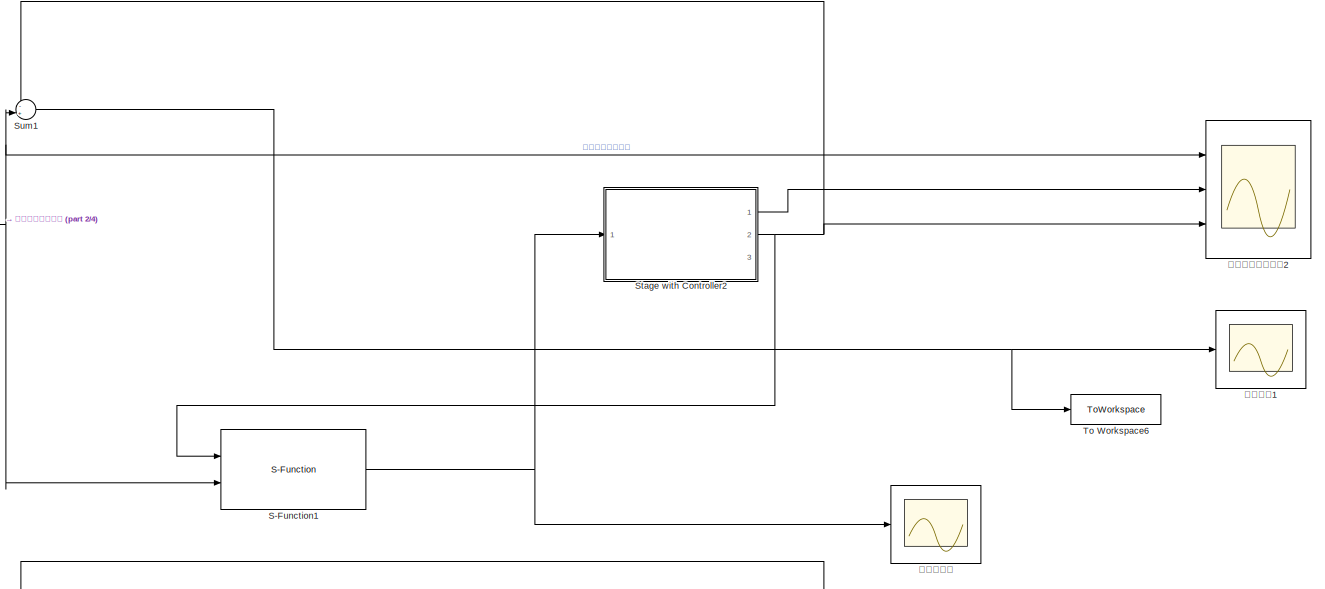
[diagram: root canvas - part 1/4, full width, top band]
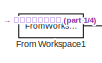
[diagram: root canvas - part 2/4, top left region]
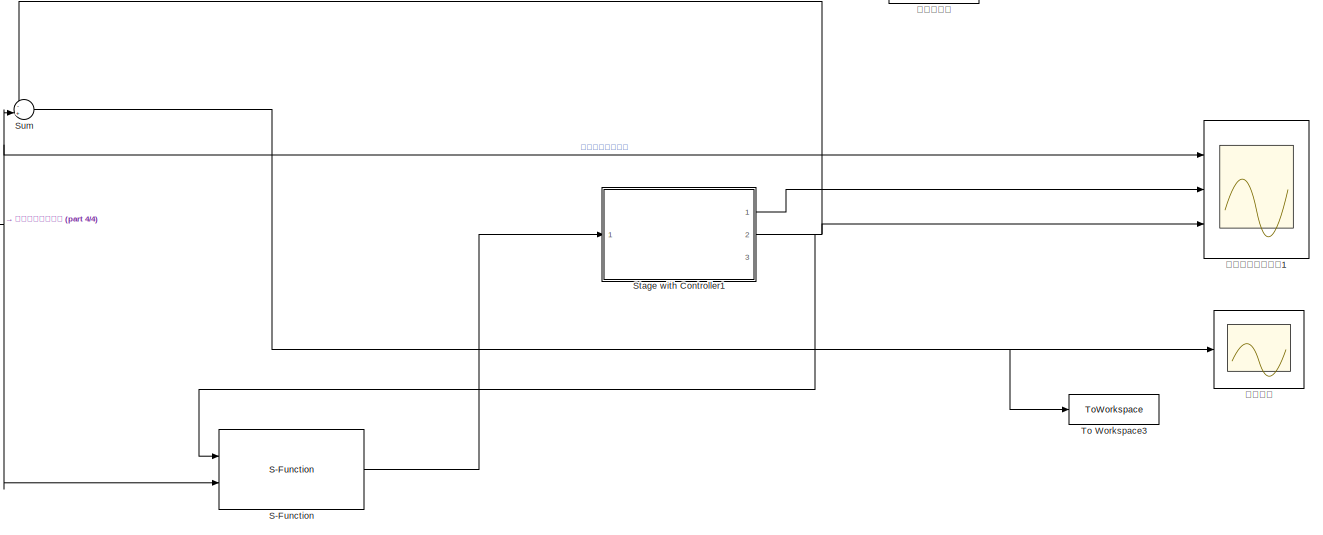
[diagram: root canvas - part 3/4, full width, bottom band]
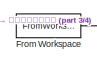
[diagram: root canvas - part 4/4, bottom left region]
MODEL slx_a1cfc8a7c245
KIND model
CONFIG AbsTol = auto
CONFIG EnableMultiTasking = off
CONFIG FixedStep = auto
CONFIG MaxStep = auto
CONFIG MinStep = auto
CONFIG RelTol = 1e-3
CONFIG SampleTimeConstraint = Unconstrained
CONFIG Solver = ode4
CONFIG SolverName = ode4
CONFIG StartTime = 0.0
CONFIG StopTime = 18
BLOCK [FromWorkspace] From Workspace
  VariableName = pathY
  ZeroCross = on
BLOCK [FromWorkspace] From Workspace1
  VariableName = pathX
  ZeroCross = on
BLOCK [S-Function] S-Function
  EnableBusSupport = off
  FunctionName = MPCwrapper
  Parameters = ts0,p0,m0,wy0,wu0,pn0,mn0,A0,B0,C0
  Ports = [2, 1]
  SFcnIsStateOwnerBlock = off
  SFunctionDeploymentMode = off
BLOCK [S-Function] S-Function1
  EnableBusSupport = off
  FunctionName = MPCwrapper
  Parameters = ts0,p0,m0,wy0,wu0,pn0,mn0,A0,B0,C0
  Ports = [2, 1]
  SFcnIsStateOwnerBlock = off
  SFunctionDeploymentMode = off
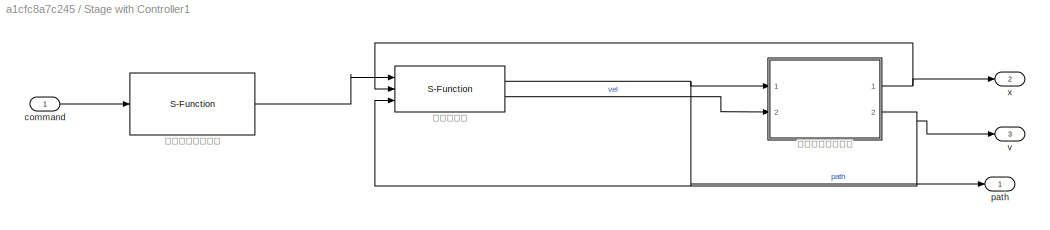
BLOCK [SubSystem] Stage with Controller1
  Ports = [1, 3]
  RequestExecContextInheritance = off
BLOCK [Inport] Stage with Controller1/command
  IconDisplay = Port number
BLOCK [Outport] Stage with Controller1/path
  IconDisplay = Port number
BLOCK [Outport] Stage with Controller1/v
  IconDisplay = Port number
  Port = 3
BLOCK [Outport] Stage with Controller1/x
  IconDisplay = Port number
  Port = 2
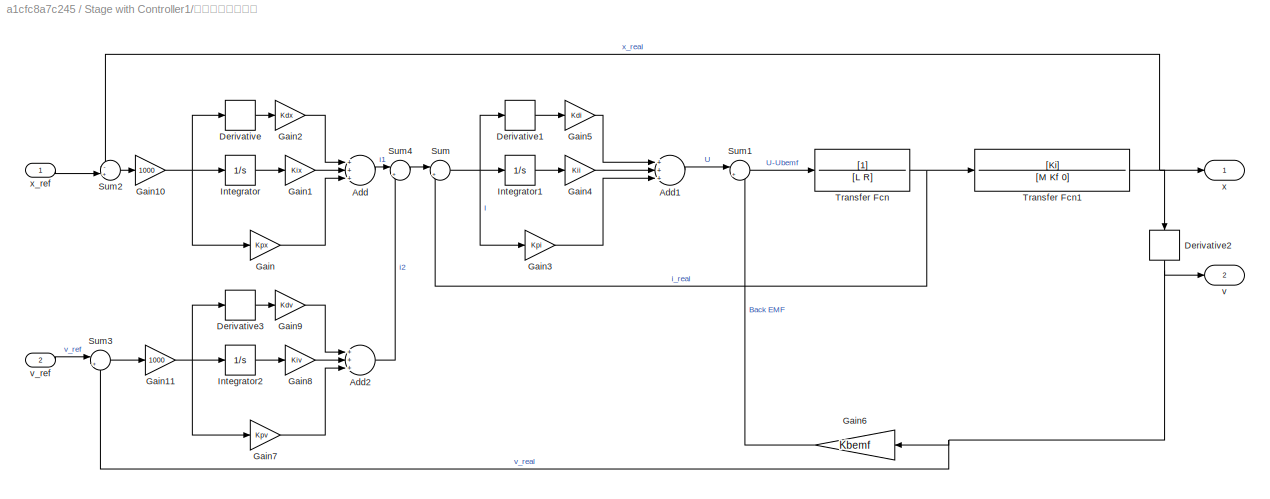
BLOCK [SubSystem] Stage with Controller1/直线电机简化模型
  Ports = [2, 2]
  RequestExecContextInheritance = off
BLOCK [Sum] Stage with Controller1/直线电机简化模型/Add
  InputSameDT = off
  Inputs = +++
  OutDataTypeStr = Inherit: Inherit via internal rule
  Ports = [3, 1]
  SaturateOnIntegerOverflow = off
BLOCK [Sum] Stage with Controller1/直线电机简化模型/Add1
  InputSameDT = off
  Inputs = +++
  OutDataTypeStr = Inherit: Inherit via internal rule
  Ports = [3, 1]
  SaturateOnIntegerOverflow = off
BLOCK [Sum] Stage with Controller1/直线电机简化模型/Add2
  InputSameDT = off
  Inputs = +++
  OutDataTypeStr = Inherit: Inherit via internal rule
  Ports = [3, 1]
  SaturateOnIntegerOverflow = off
BLOCK [Derivative] Stage with Controller1/直线电机简化模型/Derivative
BLOCK [Derivative] Stage with Controller1/直线电机简化模型/Derivative1
BLOCK [Derivative] Stage with Controller1/直线电机简化模型/Derivative2
BLOCK [Derivative] Stage with Controller1/直线电机简化模型/Derivative3
BLOCK [Gain] Stage with Controller1/直线电机简化模型/Gain
  Gain = Kpx
  OutDataTypeStr = Inherit: Inherit via internal rule
  ParamDataTypeStr = Inherit: Inherit via internal rule
  SaturateOnIntegerOverflow = off
BLOCK [Gain] Stage with Controller1/直线电机简化模型/Gain1
  Gain = Kix
  OutDataTypeStr = Inherit: Inherit via internal rule
  ParamDataTypeStr = Inherit: Inherit via internal rule
  SaturateOnIntegerOverflow = off
BLOCK [Gain] Stage with Controller1/直线电机简化模型/Gain10
  Gain = 1000
  OutDataTypeStr = Inherit: Inherit via internal rule
  ParamDataTypeStr = Inherit: Inherit via internal rule
  SaturateOnIntegerOverflow = off
BLOCK [Gain] Stage with Controller1/直线电机简化模型/Gain11
  Gain = 1000
  OutDataTypeStr = Inherit: Inherit via internal rule
  ParamDataTypeStr = Inherit: Inherit via internal rule
  SaturateOnIntegerOverflow = off
BLOCK [Gain] Stage with Controller1/直线电机简化模型/Gain2
  Gain = Kdx
  OutDataTypeStr = Inherit: Inherit via internal rule
  ParamDataTypeStr = Inherit: Inherit via internal rule
  SaturateOnIntegerOverflow = off
BLOCK [Gain] Stage with Controller1/直线电机简化模型/Gain3
  Gain = Kpi
  OutDataTypeStr = Inherit: Inherit via internal rule
  ParamDataTypeStr = Inherit: Inherit via internal rule
  SaturateOnIntegerOverflow = off
BLOCK [Gain] Stage with Controller1/直线电机简化模型/Gain4
  Gain = Kii
  OutDataTypeStr = Inherit: Inherit via internal rule
  ParamDataTypeStr = Inherit: Inherit via internal rule
  SaturateOnIntegerOverflow = off
BLOCK [Gain] Stage with Controller1/直线电机简化模型/Gain5
  Gain = Kdi
  OutDataTypeStr = Inherit: Inherit via internal rule
  ParamDataTypeStr = Inherit: Inherit via internal rule
  SaturateOnIntegerOverflow = off
BLOCK [Gain] Stage with Controller1/直线电机简化模型/Gain6
  Gain = Kbemf
  OutDataTypeStr = Inherit: Inherit via internal rule
  ParamDataTypeStr = Inherit: Inherit via internal rule
  SaturateOnIntegerOverflow = off
BLOCK [Gain] Stage with Controller1/直线电机简化模型/Gain7
  Gain = Kpv
  OutDataTypeStr = Inherit: Inherit via internal rule
  ParamDataTypeStr = Inherit: Inherit via internal rule
  SaturateOnIntegerOverflow = off
BLOCK [Gain] Stage with Controller1/直线电机简化模型/Gain8
  Gain = Kiv
  OutDataTypeStr = Inherit: Inherit via internal rule
  ParamDataTypeStr = Inherit: Inherit via internal rule
  SaturateOnIntegerOverflow = off
BLOCK [Gain] Stage with Controller1/直线电机简化模型/Gain9
  Gain = Kdv
  OutDataTypeStr = Inherit: Inherit via internal rule
  ParamDataTypeStr = Inherit: Inherit via internal rule
  SaturateOnIntegerOverflow = off
BLOCK [Integrator] Stage with Controller1/直线电机简化模型/Integrator
  Ports = [1, 1]
BLOCK [Integrator] Stage with Controller1/直线电机简化模型/Integrator1
  Ports = [1, 1]
BLOCK [Integrator] Stage with Controller1/直线电机简化模型/Integrator2
  Ports = [1, 1]
BLOCK [Sum] Stage with Controller1/直线电机简化模型/Sum
  IconShape = round
  InputSameDT = off
  Inputs = |+-
  OutDataTypeStr = Inherit: Inherit via internal rule
  Ports = [2, 1]
  SaturateOnIntegerOverflow = off
BLOCK [Sum] Stage with Controller1/直线电机简化模型/Sum1
  IconShape = round
  InputSameDT = off
  Inputs = |+-
  OutDataTypeStr = Inherit: Inherit via internal rule
  Ports = [2, 1]
  SaturateOnIntegerOverflow = off
BLOCK [Sum] Stage with Controller1/直线电机简化模型/Sum2
  IconShape = round
  InputSameDT = off
  Inputs = -+|
  OutDataTypeStr = Inherit: Inherit via internal rule
  Ports = [2, 1]
  SaturateOnIntegerOverflow = off
BLOCK [Sum] Stage with Controller1/直线电机简化模型/Sum3
  IconShape = round
  InputSameDT = off
  Inputs = |+-
  OutDataTypeStr = Inherit: Inherit via internal rule
  Ports = [2, 1]
  SaturateOnIntegerOverflow = off
BLOCK [Sum] Stage with Controller1/直线电机简化模型/Sum4
  IconShape = round
  InputSameDT = off
  Inputs = |++
  OutDataTypeStr = Inherit: Inherit via internal rule
  Ports = [2, 1]
  SaturateOnIntegerOverflow = off
BLOCK [TransferFcn] Stage with Controller1/直线电机简化模型/Transfer Fcn
  Denominator = [L R]
BLOCK [TransferFcn] Stage with Controller1/直线电机简化模型/Transfer Fcn1
  Denominator = [M Kf 0]
  Numerator = [Ki]
BLOCK [Outport] Stage with Controller1/直线电机简化模型/v
  IconDisplay = Port number
  Port = 2
BLOCK [Inport] Stage with Controller1/直线电机简化模型/v_ref
  IconDisplay = Port number
  Port = 2
BLOCK [Outport] Stage with Controller1/直线电机简化模型/x
  IconDisplay = Port number
BLOCK [Inport] Stage with Controller1/直线电机简化模型/x_ref
  IconDisplay = Port number
BLOCK [S-Function] Stage with Controller1/相对位移命令生成
  EnableBusSupport = off
  FunctionName = CommandGenerator
  Parameters = ts0,cp0
  Ports = [1, 1]
  SFcnIsStateOwnerBlock = off
  SFunctionDeploymentMode = off
BLOCK [S-Function] Stage with Controller1/路径规划器
  EnableBusSupport = off
  FunctionName = ProfileGenerator
  Parameters = ts0,vmax0,amax0
  Ports = [3, 2]
  SFcnIsStateOwnerBlock = off
  SFunctionDeploymentMode = off
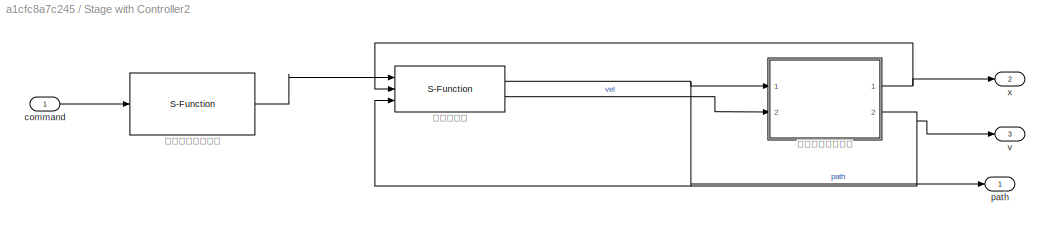
BLOCK [SubSystem] Stage with Controller2
  Ports = [1, 3]
  RequestExecContextInheritance = off
BLOCK [Inport] Stage with Controller2/command
  IconDisplay = Port number
BLOCK [Outport] Stage with Controller2/path
  IconDisplay = Port number
BLOCK [Outport] Stage with Controller2/v
  IconDisplay = Port number
  Port = 3
BLOCK [Outport] Stage with Controller2/x
  IconDisplay = Port number
  Port = 2
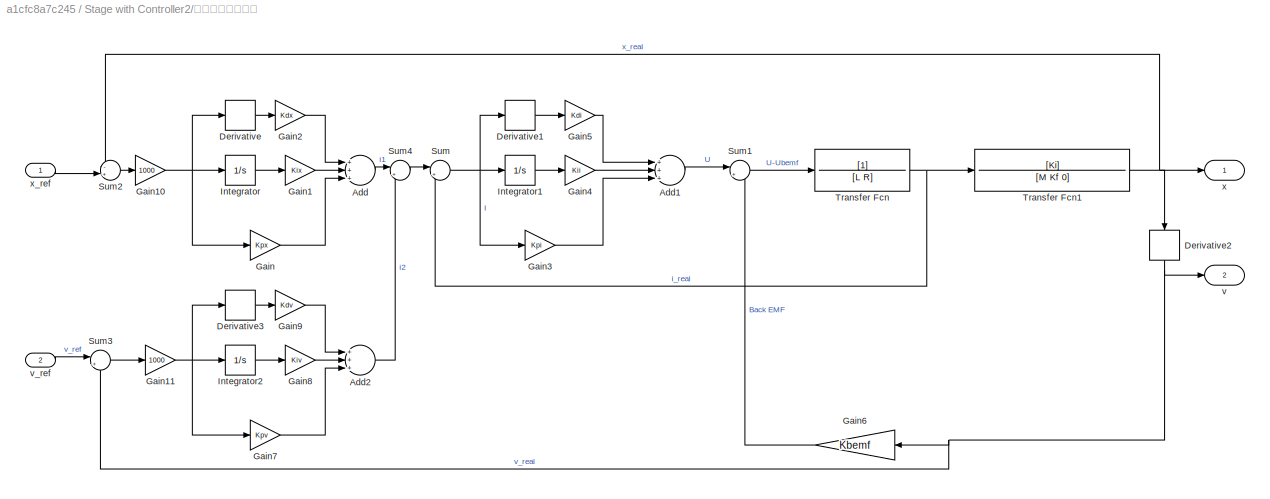
BLOCK [SubSystem] Stage with Controller2/直线电机简化模型
  Ports = [2, 2]
  RequestExecContextInheritance = off
BLOCK [Sum] Stage with Controller2/直线电机简化模型/Add
  InputSameDT = off
  Inputs = +++
  OutDataTypeStr = Inherit: Inherit via internal rule
  Ports = [3, 1]
  SaturateOnIntegerOverflow = off
BLOCK [Sum] Stage with Controller2/直线电机简化模型/Add1
  InputSameDT = off
  Inputs = +++
  OutDataTypeStr = Inherit: Inherit via internal rule
  Ports = [3, 1]
  SaturateOnIntegerOverflow = off
BLOCK [Sum] Stage with Controller2/直线电机简化模型/Add2
  InputSameDT = off
  Inputs = +++
  OutDataTypeStr = Inherit: Inherit via internal rule
  Ports = [3, 1]
  SaturateOnIntegerOverflow = off
BLOCK [Derivative] Stage with Controller2/直线电机简化模型/Derivative
BLOCK [Derivative] Stage with Controller2/直线电机简化模型/Derivative1
BLOCK [Derivative] Stage with Controller2/直线电机简化模型/Derivative2
BLOCK [Derivative] Stage with Controller2/直线电机简化模型/Derivative3
BLOCK [Gain] Stage with Controller2/直线电机简化模型/Gain
  Gain = Kpx
  OutDataTypeStr = Inherit: Inherit via internal rule
  ParamDataTypeStr = Inherit: Inherit via internal rule
  SaturateOnIntegerOverflow = off
BLOCK [Gain] Stage with Controller2/直线电机简化模型/Gain1
  Gain = Kix
  OutDataTypeStr = Inherit: Inherit via internal rule
  ParamDataTypeStr = Inherit: Inherit via internal rule
  SaturateOnIntegerOverflow = off
BLOCK [Gain] Stage with Controller2/直线电机简化模型/Gain10
  Gain = 1000
  OutDataTypeStr = Inherit: Inherit via internal rule
  ParamDataTypeStr = Inherit: Inherit via internal rule
  SaturateOnIntegerOverflow = off
BLOCK [Gain] Stage with Controller2/直线电机简化模型/Gain11
  Gain = 1000
  OutDataTypeStr = Inherit: Inherit via internal rule
  ParamDataTypeStr = Inherit: Inherit via internal rule
  SaturateOnIntegerOverflow = off
BLOCK [Gain] Stage with Controller2/直线电机简化模型/Gain2
  Gain = Kdx
  OutDataTypeStr = Inherit: Inherit via internal rule
  ParamDataTypeStr = Inherit: Inherit via internal rule
  SaturateOnIntegerOverflow = off
BLOCK [Gain] Stage with Controller2/直线电机简化模型/Gain3
  Gain = Kpi
  OutDataTypeStr = Inherit: Inherit via internal rule
  ParamDataTypeStr = Inherit: Inherit via internal rule
  SaturateOnIntegerOverflow = off
BLOCK [Gain] Stage with Controller2/直线电机简化模型/Gain4
  Gain = Kii
  OutDataTypeStr = Inherit: Inherit via internal rule
  ParamDataTypeStr = Inherit: Inherit via internal rule
  SaturateOnIntegerOverflow = off
BLOCK [Gain] Stage with Controller2/直线电机简化模型/Gain5
  Gain = Kdi
  OutDataTypeStr = Inherit: Inherit via internal rule
  ParamDataTypeStr = Inherit: Inherit via internal rule
  SaturateOnIntegerOverflow = off
BLOCK [Gain] Stage with Controller2/直线电机简化模型/Gain6
  Gain = Kbemf
  OutDataTypeStr = Inherit: Inherit via internal rule
  ParamDataTypeStr = Inherit: Inherit via internal rule
  SaturateOnIntegerOverflow = off
BLOCK [Gain] Stage with Controller2/直线电机简化模型/Gain7
  Gain = Kpv
  OutDataTypeStr = Inherit: Inherit via internal rule
  ParamDataTypeStr = Inherit: Inherit via internal rule
  SaturateOnIntegerOverflow = off
BLOCK [Gain] Stage with Controller2/直线电机简化模型/Gain8
  Gain = Kiv
  OutDataTypeStr = Inherit: Inherit via internal rule
  ParamDataTypeStr = Inherit: Inherit via internal rule
  SaturateOnIntegerOverflow = off
BLOCK [Gain] Stage with Controller2/直线电机简化模型/Gain9
  Gain = Kdv
  OutDataTypeStr = Inherit: Inherit via internal rule
  ParamDataTypeStr = Inherit: Inherit via internal rule
  SaturateOnIntegerOverflow = off
BLOCK [Integrator] Stage with Controller2/直线电机简化模型/Integrator
  Ports = [1, 1]
BLOCK [Integrator] Stage with Controller2/直线电机简化模型/Integrator1
  Ports = [1, 1]
BLOCK [Integrator] Stage with Controller2/直线电机简化模型/Integrator2
  Ports = [1, 1]
BLOCK [Sum] Stage with Controller2/直线电机简化模型/Sum
  IconShape = round
  InputSameDT = off
  Inputs = |+-
  OutDataTypeStr = Inherit: Inherit via internal rule
  Ports = [2, 1]
  SaturateOnIntegerOverflow = off
BLOCK [Sum] Stage with Controller2/直线电机简化模型/Sum1
  IconShape = round
  InputSameDT = off
  Inputs = |+-
  OutDataTypeStr = Inherit: Inherit via internal rule
  Ports = [2, 1]
  SaturateOnIntegerOverflow = off
BLOCK [Sum] Stage with Controller2/直线电机简化模型/Sum2
  IconShape = round
  InputSameDT = off
  Inputs = -+|
  OutDataTypeStr = Inherit: Inherit via internal rule
  Ports = [2, 1]
  SaturateOnIntegerOverflow = off
BLOCK [Sum] Stage with Controller2/直线电机简化模型/Sum3
  IconShape = round
  InputSameDT = off
  Inputs = |+-
  OutDataTypeStr = Inherit: Inherit via internal rule
  Ports = [2, 1]
  SaturateOnIntegerOverflow = off
BLOCK [Sum] Stage with Controller2/直线电机简化模型/Sum4
  IconShape = round
  InputSameDT = off
  Inputs = |++
  OutDataTypeStr = Inherit: Inherit via internal rule
  Ports = [2, 1]
  SaturateOnIntegerOverflow = off
BLOCK [TransferFcn] Stage with Controller2/直线电机简化模型/Transfer Fcn
  Denominator = [L R]
BLOCK [TransferFcn] Stage with Controller2/直线电机简化模型/Transfer Fcn1
  Denominator = [M Kf 0]
  Numerator = [Ki]
BLOCK [Outport] Stage with Controller2/直线电机简化模型/v
  IconDisplay = Port number
  Port = 2
BLOCK [Inport] Stage with Controller2/直线电机简化模型/v_ref
  IconDisplay = Port number
  Port = 2
BLOCK [Outport] Stage with Controller2/直线电机简化模型/x
  IconDisplay = Port number
BLOCK [Inport] Stage with Controller2/直线电机简化模型/x_ref
  IconDisplay = Port number
BLOCK [S-Function] Stage with Controller2/相对位移命令生成
  EnableBusSupport = off
  FunctionName = CommandGenerator
  Parameters = ts0,cp0
  Ports = [1, 1]
  SFcnIsStateOwnerBlock = off
  SFunctionDeploymentMode = off
BLOCK [S-Function] Stage with Controller2/路径规划器
  EnableBusSupport = off
  FunctionName = ProfileGenerator
  Parameters = ts0,vmax0,amax0
  Ports = [3, 2]
  SFcnIsStateOwnerBlock = off
  SFunctionDeploymentMode = off
BLOCK [Sum] Sum
  IconShape = round
  InputSameDT = off
  Inputs = -+|
  OutDataTypeStr = Inherit: Inherit via internal rule
  Ports = [2, 1]
  SaturateOnIntegerOverflow = off
BLOCK [Sum] Sum1
  IconShape = round
  InputSameDT = off
  Inputs = -+|
  OutDataTypeStr = Inherit: Inherit via internal rule
  Ports = [2, 1]
  SaturateOnIntegerOverflow = off
BLOCK [ToWorkspace] To Workspace3
  FixptAsFi = on
  MaxDataPoints = inf
  Ports = [1]
  SampleTime = 1/300
  Save2DSignal = 2-D array (concatenate along first dimension)
  VariableName = errorY
BLOCK [ToWorkspace] To Workspace6
  FixptAsFi = on
  MaxDataPoints = inf
  Ports = [1]
  SampleTime = 1/300
  Save2DSignal = 2-D array (concatenate along first dimension)
  VariableName = errorX
BLOCK [Scope] 观察位移跟踪情况1
  Floating = off
  NumInputPorts = 3
  Ports = [3]
  ScopeSpecificationString = Simulink.scopes.TimeScopeBlockCfg('CurrentConfiguration', extmgr.ConfigurationSet(extmgr.Configuration('Core','General UI',true),extmgr.Configuration('Core','Source UI',true),extmgr.Configuration('Sources','WiredSimulink',true,'DataLoggingVariableName','ScopeData1'),extmgr.Configuration('Visuals','Time Domain',true,'SerializedDisplays',{struct('MinYLimReal','-0.00511','MaxYLimReal','0.00498','YLab...<+1442ch>
BLOCK [Scope] 观察位移跟踪情况2
  Floating = off
  NumInputPorts = 3
  Ports = [3]
  ScopeSpecificationString = Simulink.scopes.TimeScopeBlockCfg('CurrentConfiguration', extmgr.ConfigurationSet(extmgr.Configuration('Core','General UI',true),extmgr.Configuration('Core','Source UI',true),extmgr.Configuration('Sources','WiredSimulink',true,'DataLoggingVariableName','ScopeData1'),extmgr.Configuration('Visuals','Time Domain',true,'SerializedDisplays',{struct('MinYLimReal','-0.00566','MaxYLimReal','0.00624','YLab...<+1440ch>
BLOCK [Scope] 观察控制量
  Floating = off
  NumInputPorts = 1
  Ports = [1]
  ScopeSpecificationString = Simulink.scopes.TimeScopeBlockCfg('CurrentConfiguration', extmgr.ConfigurationSet(extmgr.Configuration('Core','General UI',true),extmgr.Configuration('Core','Source UI',true),extmgr.Configuration('Sources','WiredSimulink',true,'DataLoggingVariableName','ScopeData1'),extmgr.Configuration('Visuals','Time Domain',true,'SerializedDisplays',{struct('MinYLimReal','-0.00012','MaxYLimReal','0.0001','YLabe...<+1568ch>
BLOCK [Scope] 观察误差
  Floating = off
  NumInputPorts = 1
  Ports = [1]
  ScopeSpecificationString = Simulink.scopes.TimeScopeBlockCfg('CurrentConfiguration', extmgr.ConfigurationSet(extmgr.Configuration('Core','General UI',true),extmgr.Configuration('Core','Source UI',true),extmgr.Configuration('Sources','WiredSimulink',true,'DataLoggingVariableName','ScopeData1'),extmgr.Configuration('Visuals','Time Domain',true,'SerializedDisplays',{struct('MinYLimReal','-0.0008','MaxYLimReal','0.00081','YLabe...<+1557ch>
BLOCK [Scope] 观察误差1
  Floating = off
  NumInputPorts = 1
  Ports = [1]
  ScopeSpecificationString = Simulink.scopes.TimeScopeBlockCfg('CurrentConfiguration', extmgr.ConfigurationSet(extmgr.Configuration('Core','General UI',true),extmgr.Configuration('Core','Source UI',true),extmgr.Configuration('Sources','WiredSimulink',true,'DataLoggingVariableName','ScopeData2'),extmgr.Configuration('Visuals','Time Domain',true,'SerializedDisplays',{struct('MinYLimReal','-0.00127','MaxYLimReal','0.00564','YLab...<+1559ch>
NET From Workspace1:1 -> S-Function1:2, Sum1:2, 观察位移跟踪情况2:1
NET From Workspace:1 -> S-Function:2, Sum:2, 观察位移跟踪情况1:1
NET S-Function1:1 -> Stage with Controller2:1, 观察控制量:1
LINE S-Function:1 -> Stage with Controller1:1
LINE Stage with Controller1/command:1 -> Stage with Controller1/相对位移命令生成:1
LINE Stage with Controller1/直线电机简化模型/Add1:1 -> Stage with Controller1/直线电机简化模型/Sum1:1
LINE Stage with Controller1/直线电机简化模型/Add2:1 -> Stage with Controller1/直线电机简化模型/Sum4:2
LINE Stage with Controller1/直线电机简化模型/Add:1 -> Stage with Controller1/直线电机简化模型/Sum4:1
LINE Stage with Controller1/直线电机简化模型/Derivative1:1 -> Stage with Controller1/直线电机简化模型/Gain5:1
NET Stage with Controller1/直线电机简化模型/Derivative2:1 -> Stage with Controller1/直线电机简化模型/Gain6:1, Stage with Controller1/直线电机简化模型/Sum3:2, Stage with Controller1/直线电机简化模型/v:1
LINE Stage with Controller1/直线电机简化模型/Derivative3:1 -> Stage with Controller1/直线电机简化模型/Gain9:1
LINE Stage with Controller1/直线电机简化模型/Derivative:1 -> Stage with Controller1/直线电机简化模型/Gain2:1
NET Stage with Controller1/直线电机简化模型/Gain10:1 -> Stage with Controller1/直线电机简化模型/Derivative:1, Stage with Controller1/直线电机简化模型/Gain:1, Stage with Controller1/直线电机简化模型/Integrator:1
NET Stage with Controller1/直线电机简化模型/Gain11:1 -> Stage with Controller1/直线电机简化模型/Derivative3:1, Stage with Controller1/直线电机简化模型/Gain7:1, Stage with Controller1/直线电机简化模型/Integrator2:1
LINE Stage with Controller1/直线电机简化模型/Gain1:1 -> Stage with Controller1/直线电机简化模型/Add:2
LINE Stage with Controller1/直线电机简化模型/Gain2:1 -> Stage with Controller1/直线电机简化模型/Add:1
LINE Stage with Controller1/直线电机简化模型/Gain3:1 -> Stage with Controller1/直线电机简化模型/Add1:3
LINE Stage with Controller1/直线电机简化模型/Gain4:1 -> Stage with Controller1/直线电机简化模型/Add1:2
LINE Stage with Controller1/直线电机简化模型/Gain5:1 -> Stage with Controller1/直线电机简化模型/Add1:1
LINE Stage with Controller1/直线电机简化模型/Gain6:1 -> Stage with Controller1/直线电机简化模型/Sum1:2
LINE Stage with Controller1/直线电机简化模型/Gain7:1 -> Stage with Controller1/直线电机简化模型/Add2:3
LINE Stage with Controller1/直线电机简化模型/Gain8:1 -> Stage with Controller1/直线电机简化模型/Add2:2
LINE Stage with Controller1/直线电机简化模型/Gain9:1 -> Stage with Controller1/直线电机简化模型/Add2:1
LINE Stage with Controller1/直线电机简化模型/Gain:1 -> Stage with Controller1/直线电机简化模型/Add:3
LINE Stage with Controller1/直线电机简化模型/Integrator1:1 -> Stage with Controller1/直线电机简化模型/Gain4:1
LINE Stage with Controller1/直线电机简化模型/Integrator2:1 -> Stage with Controller1/直线电机简化模型/Gain8:1
LINE Stage with Controller1/直线电机简化模型/Integrator:1 -> Stage with Controller1/直线电机简化模型/Gain1:1
LINE Stage with Controller1/直线电机简化模型/Sum1:1 -> Stage with Controller1/直线电机简化模型/Transfer Fcn:1
LINE Stage with Controller1/直线电机简化模型/Sum2:1 -> Stage with Controller1/直线电机简化模型/Gain10:1
LINE Stage with Controller1/直线电机简化模型/Sum3:1 -> Stage with Controller1/直线电机简化模型/Gain11:1
LINE Stage with Controller1/直线电机简化模型/Sum4:1 -> Stage with Controller1/直线电机简化模型/Sum:1
NET Stage with Controller1/直线电机简化模型/Sum:1 -> Stage with Controller1/直线电机简化模型/Derivative1:1, Stage with Controller1/直线电机简化模型/Gain3:1, Stage with Controller1/直线电机简化模型/Integrator1:1
NET Stage with Controller1/直线电机简化模型/Transfer Fcn1:1 -> Stage with Controller1/直线电机简化模型/Derivative2:1, Stage with Controller1/直线电机简化模型/Sum2:1, Stage with Controller1/直线电机简化模型/x:1
NET Stage with Controller1/直线电机简化模型/Transfer Fcn:1 -> Stage with Controller1/直线电机简化模型/Sum:2, Stage with Controller1/直线电机简化模型/Transfer Fcn1:1
LINE Stage with Controller1/直线电机简化模型/v_ref:1 -> Stage with Controller1/直线电机简化模型/Sum3:1
LINE Stage with Controller1/直线电机简化模型/x_ref:1 -> Stage with Controller1/直线电机简化模型/Sum2:2
NET Stage with Controller1/直线电机简化模型:1 -> Stage with Controller1/x:1, Stage with Controller1/路径规划器:2
NET Stage with Controller1/直线电机简化模型:2 -> Stage with Controller1/v:1, Stage with Controller1/路径规划器:3
LINE Stage with Controller1/相对位移命令生成:1 -> Stage with Controller1/路径规划器:1
NET Stage with Controller1/路径规划器:1 -> Stage with Controller1/path:1, Stage with Controller1/直线电机简化模型:1
LINE Stage with Controller1/路径规划器:2 -> Stage with Controller1/直线电机简化模型:2
LINE Stage with Controller1:1 -> 观察位移跟踪情况1:2
NET Stage with Controller1:2 -> S-Function:1, Sum:1, 观察位移跟踪情况1:3
LINE Stage with Controller2/command:1 -> Stage with Controller2/相对位移命令生成:1
LINE Stage with Controller2/直线电机简化模型/Add1:1 -> Stage with Controller2/直线电机简化模型/Sum1:1
LINE Stage with Controller2/直线电机简化模型/Add2:1 -> Stage with Controller2/直线电机简化模型/Sum4:2
LINE Stage with Controller2/直线电机简化模型/Add:1 -> Stage with Controller2/直线电机简化模型/Sum4:1
LINE Stage with Controller2/直线电机简化模型/Derivative1:1 -> Stage with Controller2/直线电机简化模型/Gain5:1
NET Stage with Controller2/直线电机简化模型/Derivative2:1 -> Stage with Controller2/直线电机简化模型/Gain6:1, Stage with Controller2/直线电机简化模型/Sum3:2, Stage with Controller2/直线电机简化模型/v:1
LINE Stage with Controller2/直线电机简化模型/Derivative3:1 -> Stage with Controller2/直线电机简化模型/Gain9:1
LINE Stage with Controller2/直线电机简化模型/Derivative:1 -> Stage with Controller2/直线电机简化模型/Gain2:1
NET Stage with Controller2/直线电机简化模型/Gain10:1 -> Stage with Controller2/直线电机简化模型/Derivative:1, Stage with Controller2/直线电机简化模型/Gain:1, Stage with Controller2/直线电机简化模型/Integrator:1
NET Stage with Controller2/直线电机简化模型/Gain11:1 -> Stage with Controller2/直线电机简化模型/Derivative3:1, Stage with Controller2/直线电机简化模型/Gain7:1, Stage with Controller2/直线电机简化模型/Integrator2:1
LINE Stage with Controller2/直线电机简化模型/Gain1:1 -> Stage with Controller2/直线电机简化模型/Add:2
LINE Stage with Controller2/直线电机简化模型/Gain2:1 -> Stage with Controller2/直线电机简化模型/Add:1
LINE Stage with Controller2/直线电机简化模型/Gain3:1 -> Stage with Controller2/直线电机简化模型/Add1:3
LINE Stage with Controller2/直线电机简化模型/Gain4:1 -> Stage with Controller2/直线电机简化模型/Add1:2
LINE Stage with Controller2/直线电机简化模型/Gain5:1 -> Stage with Controller2/直线电机简化模型/Add1:1
LINE Stage with Controller2/直线电机简化模型/Gain6:1 -> Stage with Controller2/直线电机简化模型/Sum1:2
LINE Stage with Controller2/直线电机简化模型/Gain7:1 -> Stage with Controller2/直线电机简化模型/Add2:3
LINE Stage with Controller2/直线电机简化模型/Gain8:1 -> Stage with Controller2/直线电机简化模型/Add2:2
LINE Stage with Controller2/直线电机简化模型/Gain9:1 -> Stage with Controller2/直线电机简化模型/Add2:1
LINE Stage with Controller2/直线电机简化模型/Gain:1 -> Stage with Controller2/直线电机简化模型/Add:3
LINE Stage with Controller2/直线电机简化模型/Integrator1:1 -> Stage with Controller2/直线电机简化模型/Gain4:1
LINE Stage with Controller2/直线电机简化模型/Integrator2:1 -> Stage with Controller2/直线电机简化模型/Gain8:1
LINE Stage with Controller2/直线电机简化模型/Integrator:1 -> Stage with Controller2/直线电机简化模型/Gain1:1
LINE Stage with Controller2/直线电机简化模型/Sum1:1 -> Stage with Controller2/直线电机简化模型/Transfer Fcn:1
LINE Stage with Controller2/直线电机简化模型/Sum2:1 -> Stage with Controller2/直线电机简化模型/Gain10:1
LINE Stage with Controller2/直线电机简化模型/Sum3:1 -> Stage with Controller2/直线电机简化模型/Gain11:1
LINE Stage with Controller2/直线电机简化模型/Sum4:1 -> Stage with Controller2/直线电机简化模型/Sum:1
NET Stage with Controller2/直线电机简化模型/Sum:1 -> Stage with Controller2/直线电机简化模型/Derivative1:1, Stage with Controller2/直线电机简化模型/Gain3:1, Stage with Controller2/直线电机简化模型/Integrator1:1
NET Stage with Controller2/直线电机简化模型/Transfer Fcn1:1 -> Stage with Controller2/直线电机简化模型/Derivative2:1, Stage with Controller2/直线电机简化模型/Sum2:1, Stage with Controller2/直线电机简化模型/x:1
NET Stage with Controller2/直线电机简化模型/Transfer Fcn:1 -> Stage with Controller2/直线电机简化模型/Sum:2, Stage with Controller2/直线电机简化模型/Transfer Fcn1:1
LINE Stage with Controller2/直线电机简化模型/v_ref:1 -> Stage with Controller2/直线电机简化模型/Sum3:1
LINE Stage with Controller2/直线电机简化模型/x_ref:1 -> Stage with Controller2/直线电机简化模型/Sum2:2
NET Stage with Controller2/直线电机简化模型:1 -> Stage with Controller2/x:1, Stage with Controller2/路径规划器:2
NET Stage with Controller2/直线电机简化模型:2 -> Stage with Controller2/v:1, Stage with Controller2/路径规划器:3
LINE Stage with Controller2/相对位移命令生成:1 -> Stage with Controller2/路径规划器:1
NET Stage with Controller2/路径规划器:1 -> Stage with Controller2/path:1, Stage with Controller2/直线电机简化模型:1
LINE Stage with Controller2/路径规划器:2 -> Stage with Controller2/直线电机简化模型:2
LINE Stage with Controller2:1 -> 观察位移跟踪情况2:2
NET Stage with Controller2:2 -> S-Function1:1, Sum1:1, 观察位移跟踪情况2:3
NET Sum1:1 -> To Workspace6:1, 观察误差1:1
NET Sum:1 -> To Workspace3:1, 观察误差:1
note: NET lines group one-source signal fan-out (src -> all destinations, sorted); 1:1 wires keep LINE
